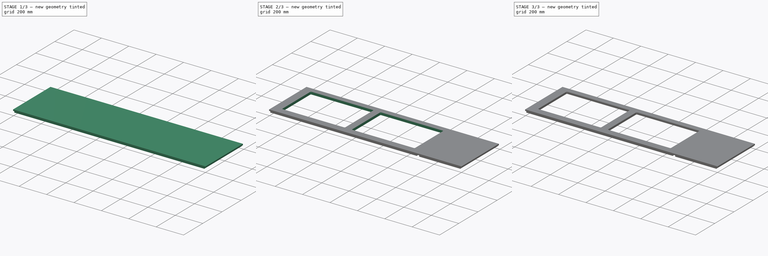
[diagram: build sequence overview — one tinted view per stage of 3, left to right]
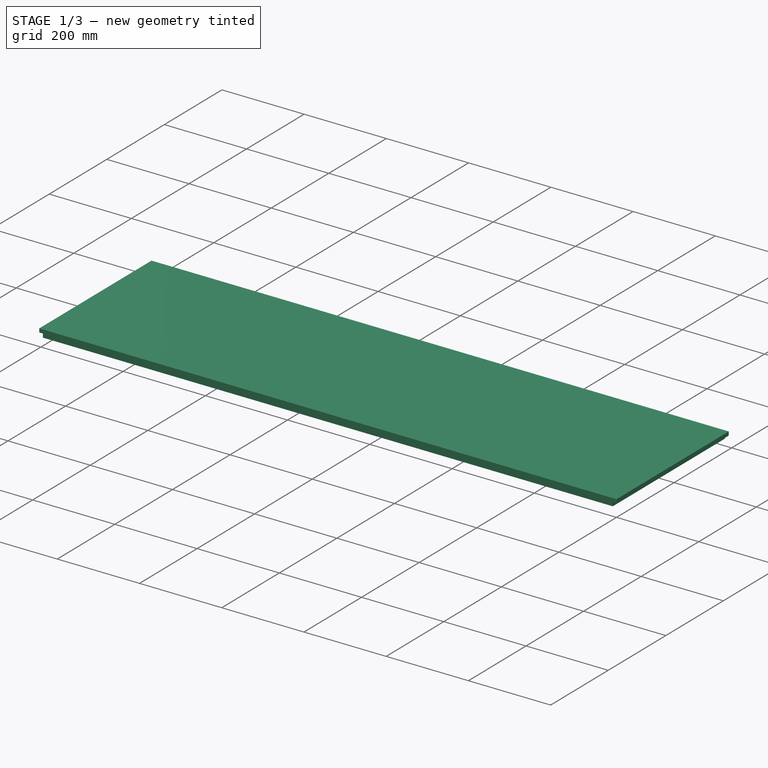
[diagram: stage 1 of 3 — iso view after this stage's code; geometry added in this stage tinted green]
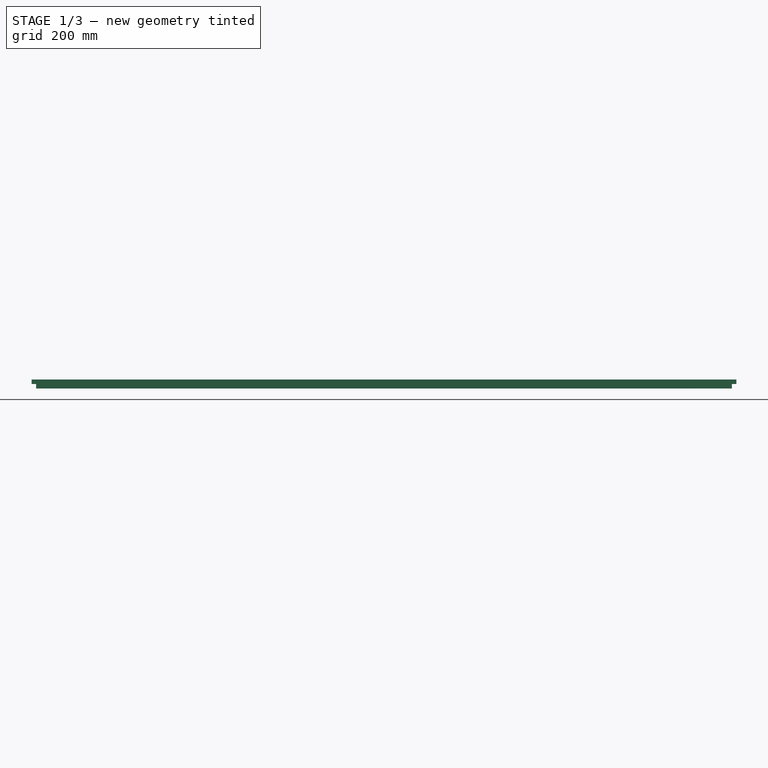
[diagram: stage 1 of 3 — front view after this stage's code; geometry added in this stage tinted green]
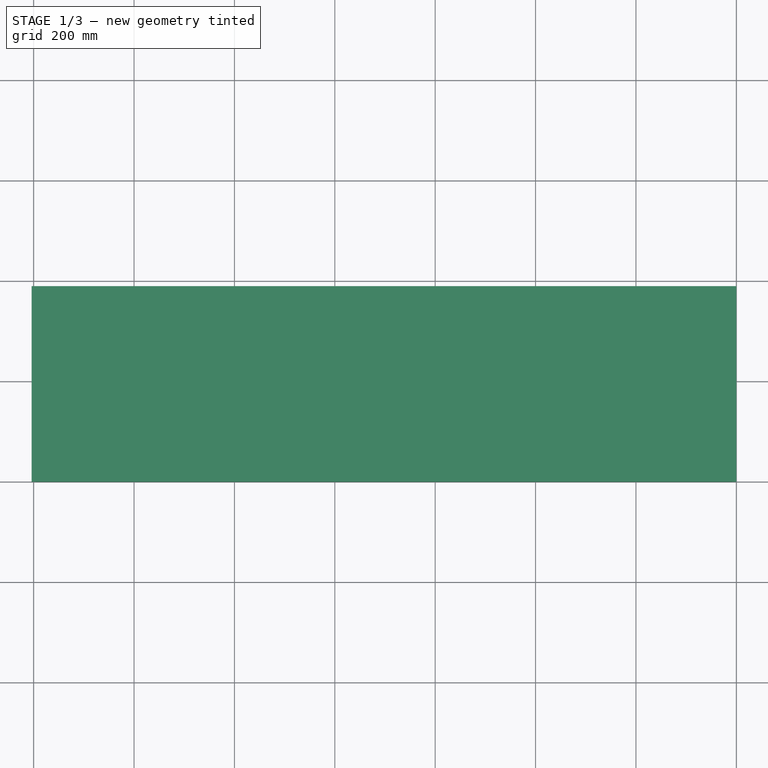
[diagram: stage 1 of 3 — top view after this stage's code; geometry added in this stage tinted green]
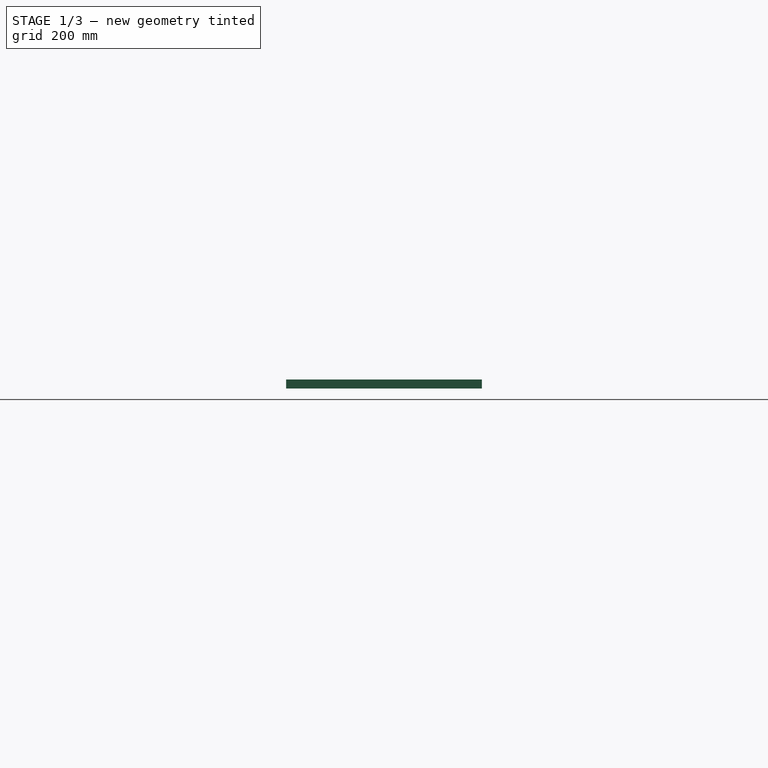
[diagram: stage 1 of 3 — right view after this stage's code; geometry added in this stage tinted green]
FCSTD DOCUMENT  (FreeCAD 0.18R4 (GitTag))
Label: vertical_right
License: All rights reserved
LicenseURL: http://en.wikipedia.org/wiki/All_rights_reserved
objects: Sketcher::SketchObject×6, PartDesign::Pocket×5, PartDesign::Pad×1, PartDesign::Body×1
note: 19 computed .brp shape members not serialized (recipe doc carries the construction recipe); baked Part::Feature solids carry a one-line shape summary decoded from their .brp

FEATURE [Sketcher::SketchObject] Sketch
  MapMode = 5
  Support = -> [XY_Plane]
  sketch-geometry (4):
    g0: LineSegment StartX=0 StartY=0 StartZ=0 EndX=-1404 EndY=0 EndZ=0
    g1: LineSegment StartX=-1404 StartY=0 StartZ=0 EndX=-1404 EndY=390 EndZ=0
    g2: LineSegment StartX=-1404 StartY=390 StartZ=0 EndX=0 EndY=390 EndZ=0
    g3: LineSegment StartX=0 StartY=390 StartZ=0 EndX=0 EndY=0 EndZ=0
  constraints (11):
    c: Coincident(g0,g1)
    c: Coincident(g1,g2)
    c: Coincident(g2,g3)
    c: Coincident(g3,g0)
    c: Horizontal(g0)
    c: Horizontal(g2)
    c: Vertical(g1)
    c: Vertical(g3)
    c: Coincident(g0,g-1)
    c: DistanceY(g3,g3) = 390
    c: DistanceX(g0,g0) = 1404
FEATURE [PartDesign::Pad] Pad
  Length = 18
  Length2 = 100
  Profile = -> Sketch
  Type = 0
FEATURE [Sketcher::SketchObject] Sketch001
  MapMode = 5
  Support = -> [XY_Plane]
  sketch-geometry (8):
    g0: LineSegment StartX=0 StartY=0 StartZ=0 EndX=-9 EndY=0 EndZ=0
    g1: LineSegment StartX=-9 StartY=0 StartZ=0 EndX=-9 EndY=390 EndZ=0
    g2: LineSegment StartX=-9 StartY=390 StartZ=0 EndX=0 EndY=390 EndZ=0
    g3: LineSegment StartX=0 StartY=390 StartZ=0 EndX=0 EndY=0 EndZ=0
    g4: LineSegment StartX=-1395 StartY=0 StartZ=0 EndX=-1404 EndY=0 EndZ=0
    g5: LineSegment StartX=-1404 StartY=0 StartZ=0 EndX=-1404 EndY=390 EndZ=0
    g6: LineSegment StartX=-1404 StartY=390 StartZ=0 EndX=-1395 EndY=390 EndZ=0
    g7: LineSegment StartX=-1395 StartY=390 StartZ=0 EndX=-1395 EndY=0 EndZ=0
  constraints (23):
    c: Coincident(g0,g1)
    c: Coincident(g1,g2)
    c: Coincident(g2,g3)
    c: Coincident(g3,g0)
    c: Horizontal(g0)
    c: Horizontal(g2)
    c: Vertical(g1)
    c: Vertical(g3)
    c: Coincident(g4,g5)
    c: Coincident(g5,g6)
    c: Coincident(g6,g7)
    c: Coincident(g7,g4)
    c: Horizontal(g4)
    c: Horizontal(g6)
    c: Vertical(g5)
    c: Vertical(g7)
    c: Coincident(g0,g-1)
    c: DistanceX(g0,g0) = 9
    c: DistanceY(g3,g3) = 390
    c: PointOnObject(g4,g-1)
    c: DistanceX(g4,g4) = 9
    c: DistanceY(g5,g5) = 390
    c: DistanceX(g4,g0) = 1404
FEATURE [PartDesign::Pocket] Pocket
  BaseFeature = -> Pad
  Length = 9
  Length2 = 100
  Profile = -> Sketch001
  Reversed = true
  Type = 0
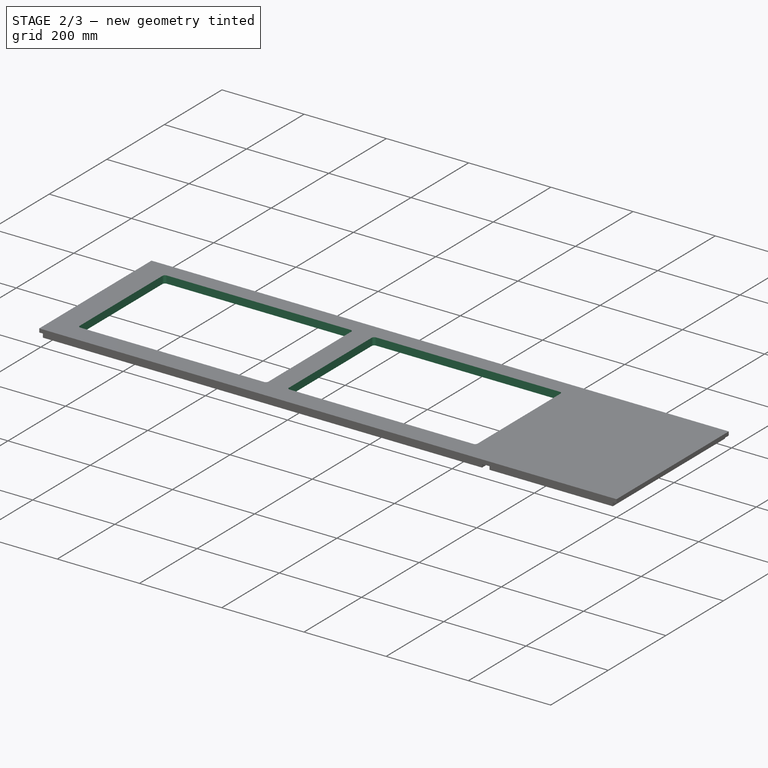
[diagram: stage 2 of 3 — iso view after this stage's code; geometry added in this stage tinted green]
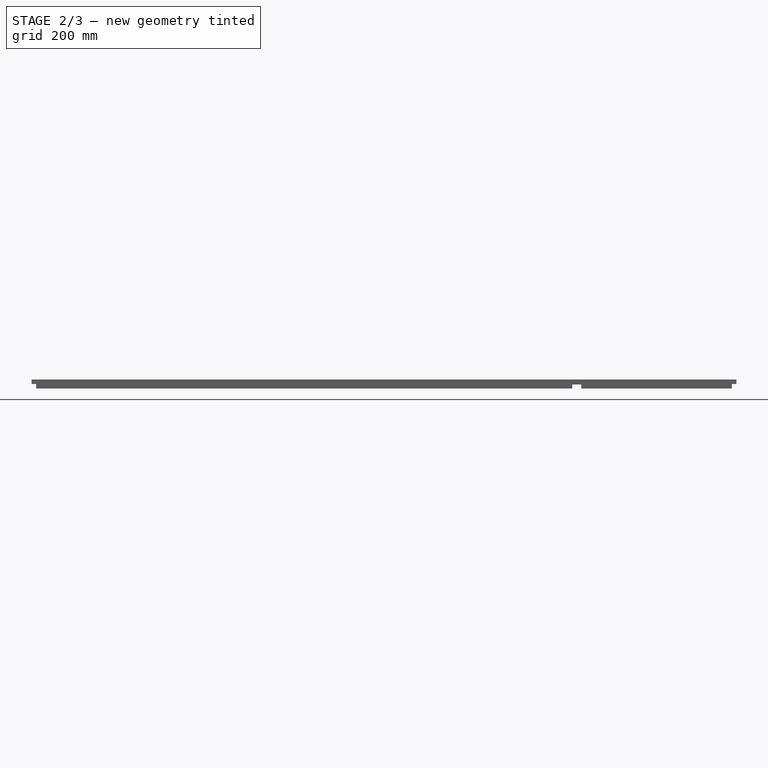
[diagram: stage 2 of 3 — front view after this stage's code; geometry added in this stage tinted green]
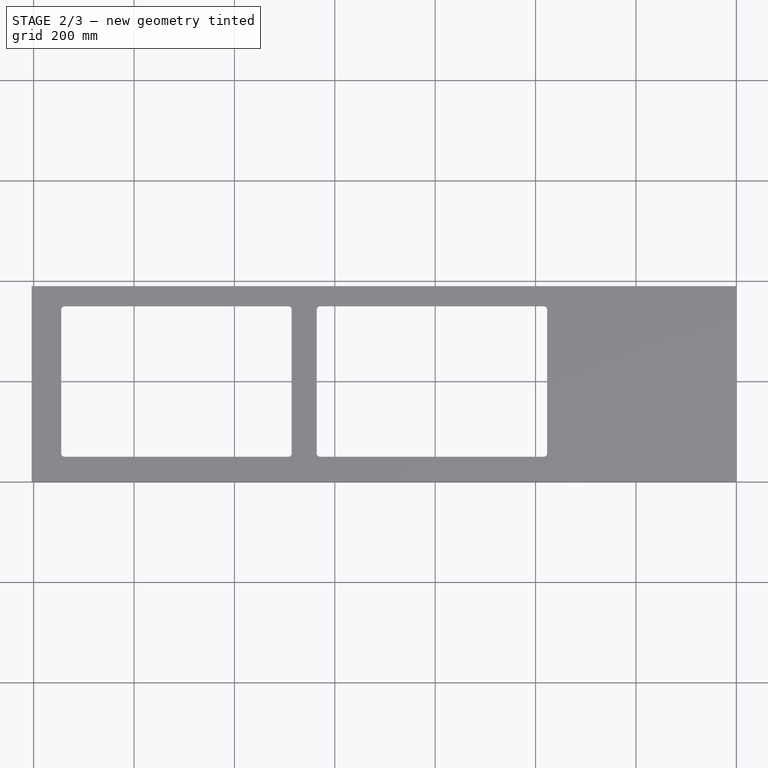
[diagram: stage 2 of 3 — top view after this stage's code; geometry added in this stage tinted green]
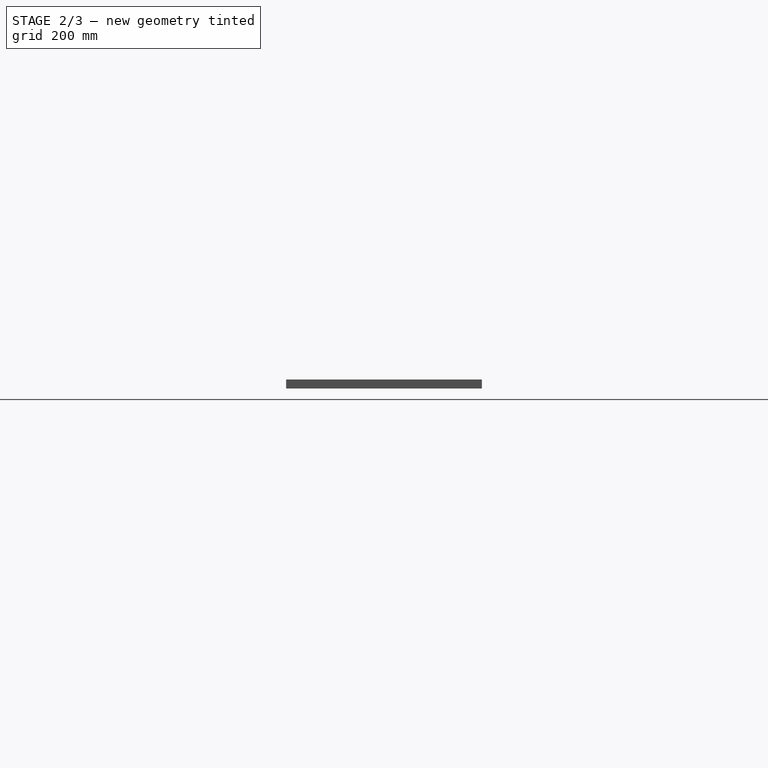
[diagram: stage 2 of 3 — right view after this stage's code; geometry added in this stage tinted green]
FEATURE [Sketcher::SketchObject] Sketch002
  MapMode = 5
  Placement = pos=(0,0,0) rot=(1,0,0;3.14159rad)
  Support = -> [Pocket]
  sketch-geometry (4):
    g0: LineSegment StartX=-309 StartY=0 StartZ=0 EndX=-327 EndY=0 EndZ=0
    g1: LineSegment StartX=-327 StartY=0 StartZ=0 EndX=-327 EndY=-390 EndZ=0
    g2: LineSegment StartX=-327 StartY=-390 StartZ=0 EndX=-309 EndY=-390 EndZ=0
    g3: LineSegment StartX=-309 StartY=-390 StartZ=0 EndX=-309 EndY=0 EndZ=0
  constraints (12):
    c: Coincident(g0,g1)
    c: Coincident(g1,g2)
    c: Coincident(g2,g3)
    c: Coincident(g3,g0)
    c: Horizontal(g0)
    c: Horizontal(g2)
    c: Vertical(g1)
    c: Vertical(g3)
    c: PointOnObject(g0,g-1)
    c: DistanceY(g3,g3) = 390
    c: DistanceX(g0,g0) = 18
    c: DistanceX(g0,g-1) = 309
FEATURE [PartDesign::Pocket] Pocket001
  BaseFeature = -> Pocket
  Length = 8
  Length2 = 100
  Profile = -> Sketch002
  Type = 0
FEATURE [Sketcher::SketchObject] Sketch004
  MapMode = 5
  Placement = pos=(0,0,0) rot=(1,0,0;3.14159rad)
  sketch-geometry (16):
    g0: LineSegment StartX=-383.35 StartY=-350 StartZ=0 EndX=-829.65 EndY=-350 EndZ=0
    g1: LineSegment StartX=-377 StartY=-343.65 StartZ=0 EndX=-377 EndY=-56.35 EndZ=0
    g2: LineSegment StartX=-383.35 StartY=-50 StartZ=0 EndX=-829.65 EndY=-50 EndZ=0
    g3: LineSegment StartX=-836 StartY=-56.35 StartZ=0 EndX=-836 EndY=-343.65 EndZ=0
    g4: ArcOfCircle CenterX=-829.65 CenterY=-56.35 CenterZ=0 NormalX=0 NormalY=0 NormalZ=1 AngleXU=0 Radius=6.35 StartAngle=1.5708 EndAngle=3.14159
    g5: ArcOfCircle CenterX=-829.65 CenterY=-343.65 CenterZ=0 NormalX=0 NormalY=0 NormalZ=1 AngleXU=0 Radius=6.35 StartAngle=3.14159 EndAngle=4.71239
    g6: ArcOfCircle CenterX=-383.35 CenterY=-343.65 CenterZ=0 NormalX=0 NormalY=0 NormalZ=1 AngleXU=0 Radius=6.35 StartAngle=4.71239 EndAngle=6.28319
    g7: ArcOfCircle CenterX=-383.35 CenterY=-56.35 CenterZ=0 NormalX=0 NormalY=0 NormalZ=1 AngleXU=0 Radius=6.35 StartAngle=7e-16 EndAngle=1.5708
    g8: LineSegment StartX=-886 StartY=-56.35 StartZ=0 EndX=-886 EndY=-343.65 EndZ=0
    g9: LineSegment StartX=-892.35 StartY=-350 StartZ=0 EndX=-1338.65 EndY=-350 EndZ=0
    g10: LineSegment StartX=-1345 StartY=-343.65 StartZ=0 EndX=-1345 EndY=-56.35 EndZ=0
    g11: LineSegment StartX=-1338.65 StartY=-50 StartZ=0 EndX=-892.35 EndY=-50 EndZ=0
    g12: ArcOfCircle CenterX=-892.35 CenterY=-56.35 CenterZ=0 NormalX=0 NormalY=0 NormalZ=1 AngleXU=0 Radius=6.35 StartAngle=8e-16 EndAngle=1.5708
    g13: ArcOfCircle CenterX=-892.35 CenterY=-343.65 CenterZ=0 NormalX=0 NormalY=0 NormalZ=1 AngleXU=0 Radius=6.35 StartAngle=4.71239 EndAngle=6.28319
    g14: ArcOfCircle CenterX=-1338.65 CenterY=-343.65 CenterZ=0 NormalX=0 NormalY=0 NormalZ=1 AngleXU=0 Radius=6.35 StartAngle=3.14159 EndAngle=4.71239
    g15: ArcOfCircle CenterX=-1338.65 CenterY=-56.35 CenterZ=0 NormalX=0 NormalY=0 NormalZ=1 AngleXU=0 Radius=6.35 StartAngle=1.5708 EndAngle=3.14159
  constraints (56):
    c: Coincident(g1,g7)
    c: Coincident(g7,g2)
    c: Coincident(g6,g0)
    c: Coincident(g1,g6)
    c: Coincident(g5,g0)
    c: Coincident(g5,g3)
    c: Coincident(g4,g3)
    c: Coincident(g2,g4)
    c: Horizontal(g2)
    c: Horizontal(g0)
    c: Vertical(g3)
    c: Vertical(g1)
    c: DistanceX(g1,g-1) = 377
    c: DistanceX(g0,g1) = 6.35
    c: DistanceY(g0,g1) = 6.35
    c: Radius(g6) = 6.35
    c: Radius(g7) = 6.35
    c: Radius(g4) = 6.35
    c: Radius(g5) = 6.35
    c: DistanceX(g2,g1) = 6.35
    c: DistanceY(g1,g2) = 6.35
    c: DistanceY(g3,g2) = 6.35
    c: DistanceX(g3,g2) = 6.35
    c: DistanceX(g3,g0) = 6.35
    c: DistanceY(g0,g3) = 6.35
    c: DistanceY(g2,g-1) = 50
    c: DistanceY(g0,g2) = 300
    c: DistanceX(g3,g1) = 459
    c: Coincident(g11,g15)
    c: Coincident(g10,g15)
    c: Coincident(g14,g9)
    c: Coincident(g10,g14)
    c: Coincident(g9,g13)
    c: Coincident(g13,g8)
    c: Coincident(g12,g8)
    c: Coincident(g12,g11)
    c: Horizontal(g11)
    c: Horizontal(g9)
    c: Vertical(g8)
    c: Vertical(g10)
    c: DistanceX(g10,g9) = 6.35
    c: DistanceX(g10,g11) = 6.35
    c: DistanceX(g11,g8) = 6.35
    c: DistanceX(g9,g8) = 6.35
    c: DistanceY(g9,g8) = 6.35
    c: DistanceY(g8,g11) = 6.35
    c: DistanceY(g10,g11) = 6.35
    c: DistanceY(g9,g10) = 6.35
    c: Radius(g13) = 6.35
    c: Radius(g12) = 6.35
    c: Radius(g15) = 6.35
    c: Radius(g14) = 6.35
    c: DistanceX(g10,g8) = 459
    c: DistanceY(g9,g11) = 300
    c: DistanceX(g8,g3) = 50
    c: DistanceY(g2,g11) = 0
FEATURE [PartDesign::Pocket] Pocket003
  BaseFeature = -> Pocket001
  Length = 5
  Length2 = 100
  Profile = -> Sketch004
  Type = 1
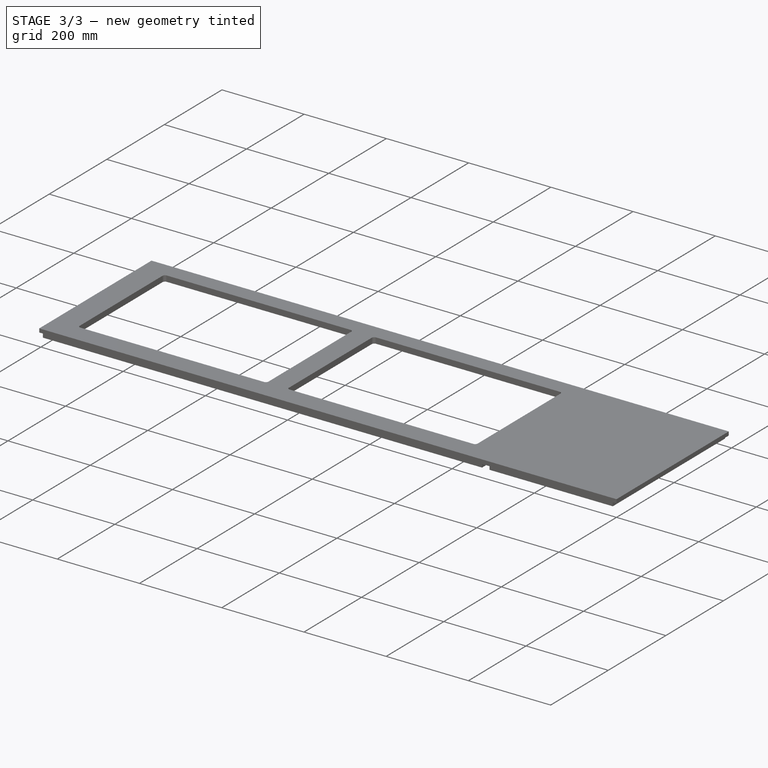
[diagram: stage 3 of 3 — iso view after this stage's code; geometry added in this stage tinted green]
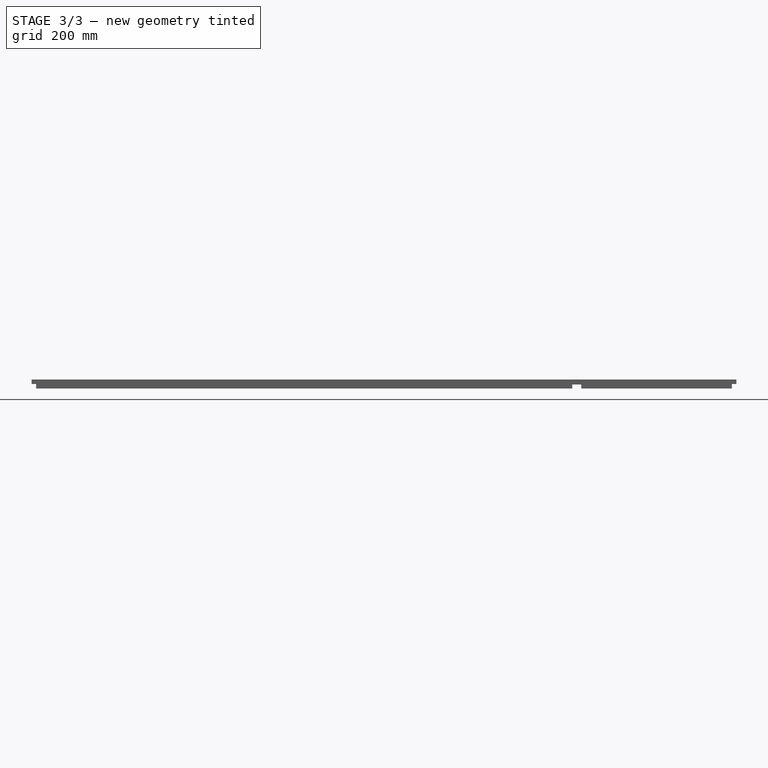
[diagram: stage 3 of 3 — front view after this stage's code; geometry added in this stage tinted green]
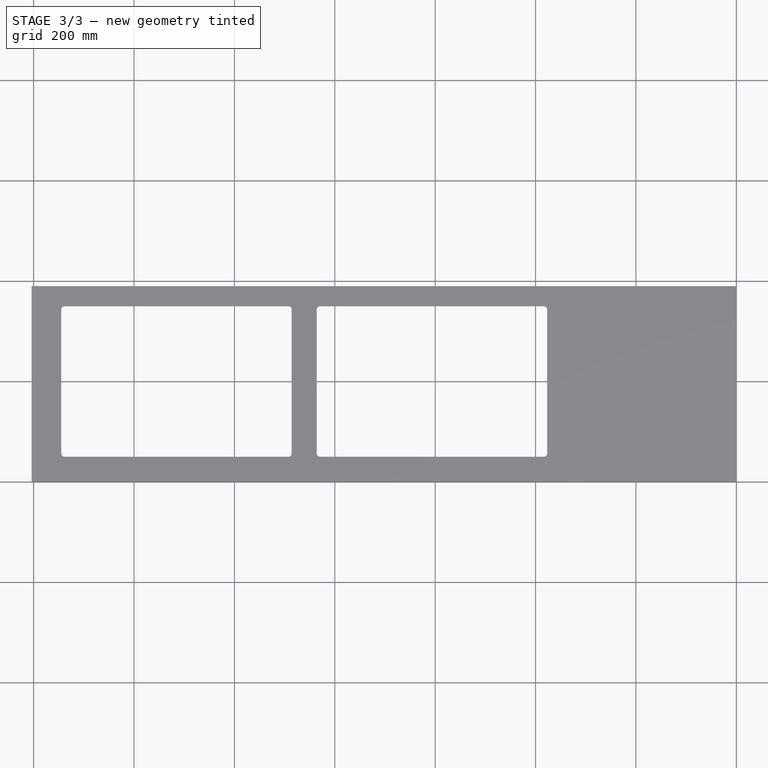
[diagram: stage 3 of 3 — top view after this stage's code; geometry added in this stage tinted green]
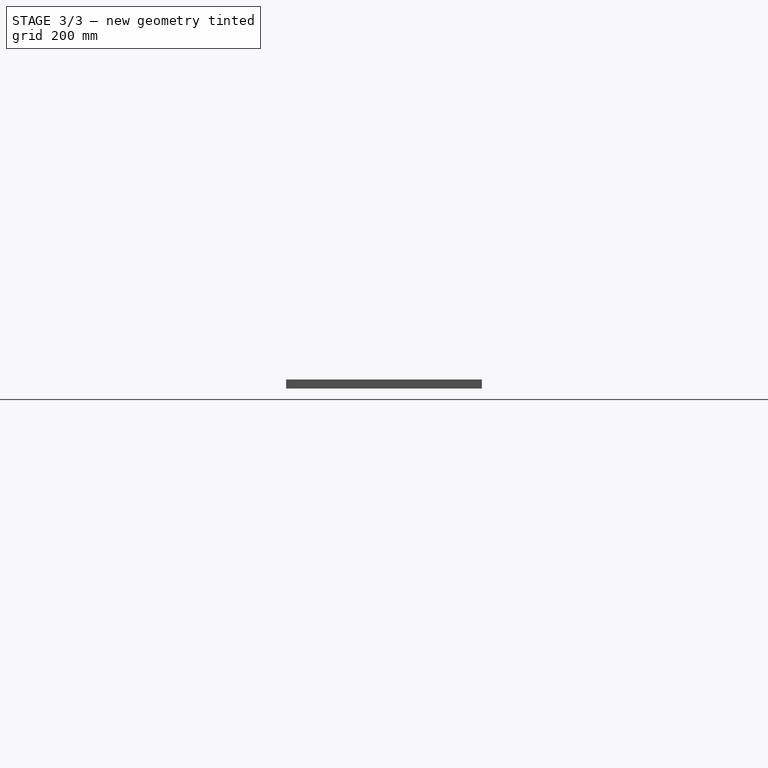
[diagram: stage 3 of 3 — right view after this stage's code; geometry added in this stage tinted green]
FEATURE [Sketcher::SketchObject] Sketch005
  MapMode = 5
  Placement = pos=(0,0,0) rot=(1,0,0;3.14159rad)
  Support = -> [Pocket003]
  sketch-geometry (8):
    g0: LineSegment StartX=-366 StartY=-40 StartZ=0 EndX=-846 EndY=-40 EndZ=0
    g1: LineSegment StartX=-846 StartY=-40 StartZ=0 EndX=-846 EndY=-360 EndZ=0
    g2: LineSegment StartX=-846 StartY=-360 StartZ=0 EndX=-366 EndY=-360 EndZ=0
    g3: LineSegment StartX=-366 StartY=-360 StartZ=0 EndX=-366 EndY=-40 EndZ=0
    g4: LineSegment StartX=-876 StartY=-40 StartZ=0 EndX=-1356 EndY=-40 EndZ=0
    g5: LineSegment StartX=-1356 StartY=-40 StartZ=0 EndX=-1356 EndY=-360 EndZ=0
    g6: LineSegment StartX=-1356 StartY=-360 StartZ=0 EndX=-876 EndY=-360 EndZ=0
    g7: LineSegment StartX=-876 StartY=-360 StartZ=0 EndX=-876 EndY=-40 EndZ=0
  constraints (24):
    c: Coincident(g0,g1)
    c: Coincident(g1,g2)
    c: Coincident(g2,g3)
    c: Coincident(g3,g0)
    c: Horizontal(g0)
    c: Horizontal(g2)
    c: Vertical(g1)
    c: Vertical(g3)
    c: Coincident(g4,g5)
    c: Coincident(g5,g6)
    c: Coincident(g6,g7)
    c: Coincident(g7,g4)
    c: Horizontal(g4)
    c: Horizontal(g6)
    c: Vertical(g5)
    c: Vertical(g7)
    c: DistanceY(g0,g-1) = 40
    c: DistanceY(g3,g3) = 320
    c: DistanceX(g0,g-1) = 366
    c: DistanceX(g0,g0) = 480
    c: DistanceX(g4,g0) = 30
    c: DistanceX(g4,g4) = 480
    c: DistanceY(g4,g0) = 0
    c: DistanceY(g1,g6) = 0
FEATURE [PartDesign::Pocket] Pocket004
  BaseFeature = -> Pocket003
  Length = 4
  Length2 = 100
  Profile = -> Sketch005
  Type = 0
FEATURE [Sketcher::SketchObject] Sketch006
  MapMode = 5
  Placement = pos=(0,0,0) rot=(1,0,0;3.14159rad)
  Support = -> [Pocket004]
  sketch-geometry (18):
    g0: Circle CenterX=-433 CenterY=-29 CenterZ=0 NormalX=0 NormalY=0 NormalZ=1 AngleXU=0 Radius=2.5
    g1: Circle CenterX=-539 CenterY=-29 CenterZ=0 NormalX=0 NormalY=0 NormalZ=1 AngleXU=0 Radius=2.5
    g2: Circle CenterX=-645 CenterY=-29 CenterZ=0 NormalX=0 NormalY=0 NormalZ=1 AngleXU=0 Radius=2.5
    g3: Circle CenterX=-751 CenterY=-29 CenterZ=0 NormalX=0 NormalY=0 NormalZ=1 AngleXU=0 Radius=2.5
    g4: Circle CenterX=-857 CenterY=-29 CenterZ=0 NormalX=0 NormalY=0 NormalZ=1 AngleXU=0 Radius=2.5
    g5: Circle CenterX=-963 CenterY=-29 CenterZ=0 NormalX=0 NormalY=0 NormalZ=1 AngleXU=0 Radius=2.5
    g6: Circle CenterX=-1069 CenterY=-29 CenterZ=0 NormalX=0 NormalY=0 NormalZ=1 AngleXU=0 Radius=2.5
    g7: Circle CenterX=-1175 CenterY=-29 CenterZ=0 NormalX=0 NormalY=0 NormalZ=1 AngleXU=0 Radius=2.5
    g8: Circle CenterX=-1281 CenterY=-29 CenterZ=0 NormalX=0 NormalY=0 NormalZ=1 AngleXU=0 Radius=2.5
    g9: Circle CenterX=-433 CenterY=-371 CenterZ=0 NormalX=0 NormalY=0 NormalZ=1 AngleXU=0 Radius=2.5
    g10: Circle CenterX=-539 CenterY=-371 CenterZ=0 NormalX=0 NormalY=0 NormalZ=1 AngleXU=0 Radius=2.5
    g11: Circle CenterX=-645 CenterY=-371 CenterZ=0 NormalX=0 NormalY=0 NormalZ=1 AngleXU=0 Radius=2.5
    g12: Circle CenterX=-751 CenterY=-371 CenterZ=0 NormalX=0 NormalY=0 NormalZ=1 AngleXU=0 Radius=2.5
    g13: Circle CenterX=-857 CenterY=-371 CenterZ=0 NormalX=0 NormalY=0 NormalZ=1 AngleXU=0 Radius=2.5
    g14: Circle CenterX=-963 CenterY=-371 CenterZ=0 NormalX=0 NormalY=0 NormalZ=1 AngleXU=0 Radius=2.5
    g15: Circle CenterX=-1069 CenterY=-371 CenterZ=0 NormalX=0 NormalY=0 NormalZ=1 AngleXU=0 Radius=2.5
    g16: Circle CenterX=-1175 CenterY=-371 CenterZ=0 NormalX=0 NormalY=0 NormalZ=1 AngleXU=0 Radius=2.5
    g17: Circle CenterX=-1281 CenterY=-371 CenterZ=0 NormalX=0 NormalY=0 NormalZ=1 AngleXU=0 Radius=2.5
  constraints (54):
    c: DistanceY(g0,g-1) = 29
    c: Diameter(g0) = 5
    c: DistanceX(g0,g-1) = 433
    c: DistanceX(g1,g0) = 106
    c: DistanceX(g2,g1) = 106
    c: DistanceX(g3,g2) = 106
    c: DistanceX(g4,g3) = 106
    c: DistanceX(g5,g4) = 106
    c: DistanceX(g6,g5) = 106
    c: DistanceX(g7,g6) = 106
    c: DistanceX(g8,g7) = 106
    c: Diameter(g8) = 5
    c: Diameter(g7) = 5
    c: Diameter(g6) = 5
    c: Diameter(g5) = 5
    c: Diameter(g4) = 5
    c: Diameter(g3) = 5
    c: Diameter(g1) = 5
    c: Diameter(g2) = 5
    c: DistanceY(g0,g1) = 0
    c: DistanceY(g1,g2) = 0
    c: DistanceY(g2,g3) = 0
    c: DistanceY(g3,g4) = 0
    c: DistanceY(g4,g5) = 0
    c: DistanceY(g5,g6) = 0
    c: DistanceY(g6,g7) = 0
    c: DistanceY(g7,g8) = 0
    c: Diameter(g9) = 5
    c: Diameter(g10) = 5
    c: Diameter(g11) = 5
    c: Diameter(g12) = 5
    c: Diameter(g13) = 5
    c: Diameter(g14) = 5
    c: Diameter(g15) = 5
    c: Diameter(g16) = 5
    c: Diameter(g17) = 5
    c: DistanceX(g0,g9) = 0
    c: DistanceX(g10,g1) = 0
    c: DistanceX(g2,g11) = 0
    c: DistanceX(g12,g3) = 0
    c: DistanceX(g13,g4) = 0
    c: DistanceX(g5,g14) = 0
    c: DistanceX(g15,g6) = 0
    c: DistanceX(g7,g16) = 0
    c: DistanceX(g8,g17) = 0
    c: DistanceY(g9,g10) = 0
    c: DistanceY(g10,g11) = 0
    c: DistanceY(g11,g12) = 0
    c: DistanceY(g13,g12) = 0
    c: DistanceY(g13,g14) = 0
    c: DistanceY(g15,g14) = 0
    c: DistanceY(g15,g16) = 0
    c: DistanceY(g16,g17) = 0
    c: DistanceY(g9,g0) = 342
FEATURE [PartDesign::Pocket] Pocket005
  BaseFeature = -> Pocket004
  Length = 10
  Length2 = 100
  Profile = -> Sketch006
  Type = 0
FEATURE [PartDesign::Body] Body
  Group = -> [Sketch,Pad,Sketch001,Pocket,Sketch002,Pocket001,Sketch004,Pocket003,Sketch005,Pocket004,Sketch006,Pocket005]
  Origin = -> Origin
  Tip = -> Pocket005
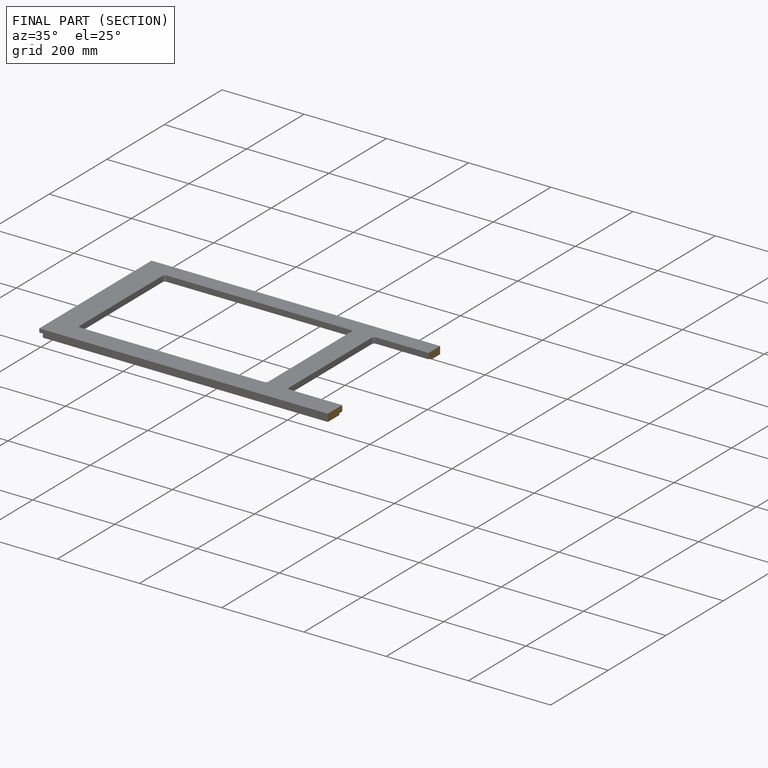
[diagram: finished part — half-section view (interior)]
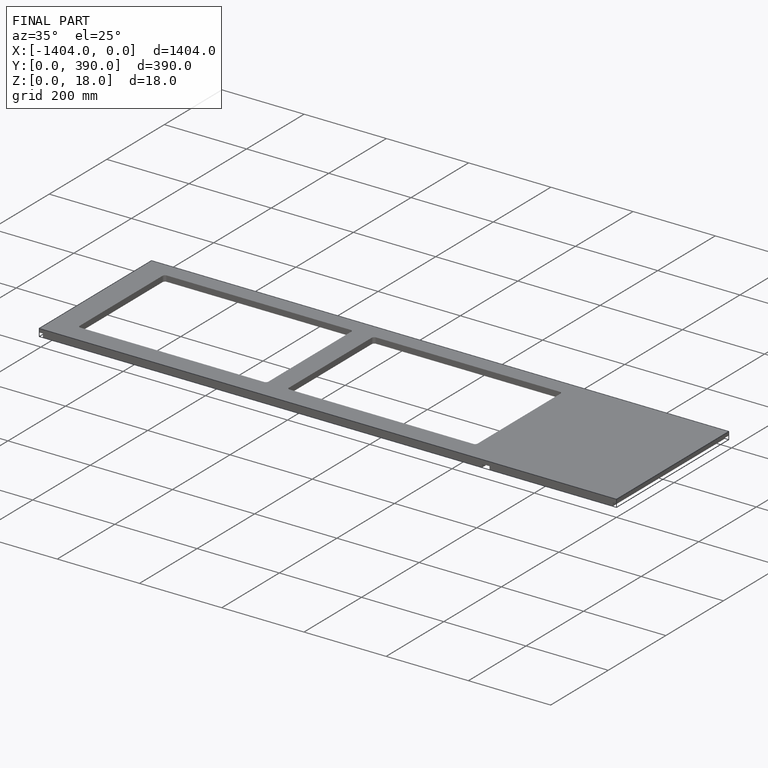
[diagram: finished part — iso view with bounding-box wireframe]
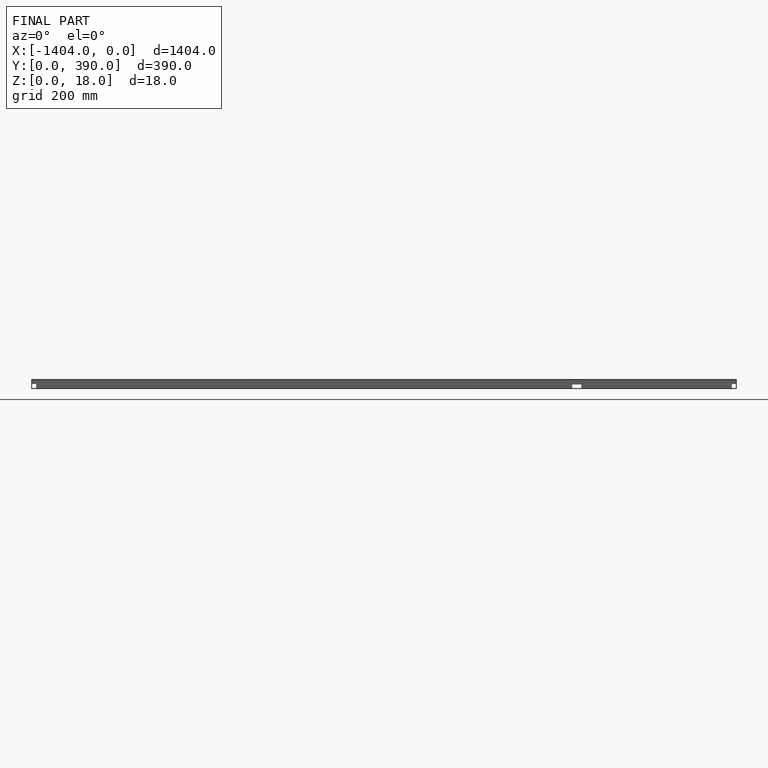
[diagram: finished part — front view with bounding-box wireframe]
